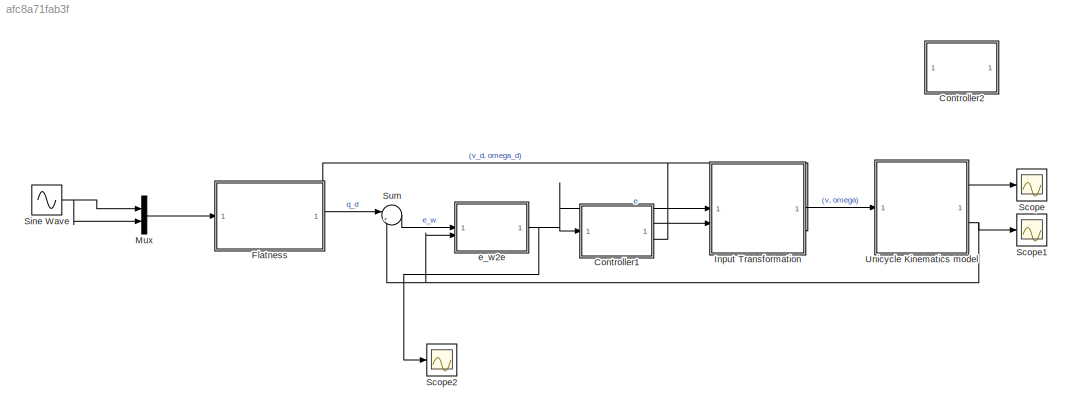
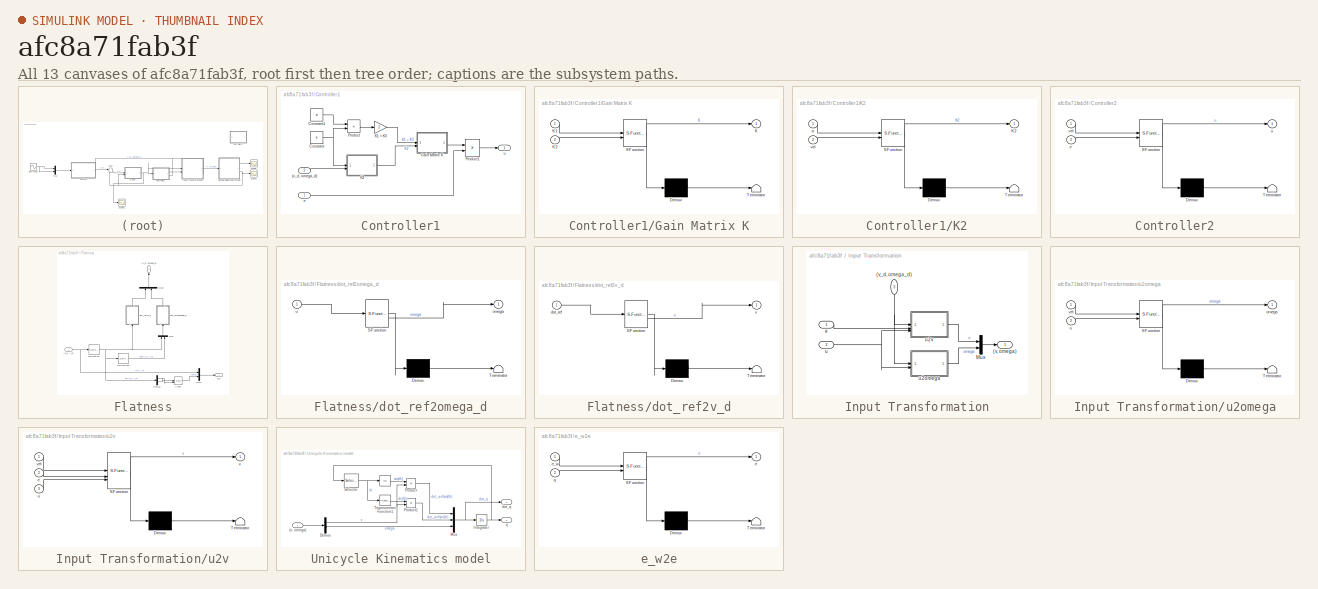
[diagram: thumbnail index - all 13 canvases of the model, root first then tree order]
MODEL slx_afc8a71fab3f
KIND model
CONFIG AbsTol = auto
CONFIG EnableMultiTasking = off
CONFIG FixedStep = auto
CONFIG MaxStep = auto
CONFIG MinStep = auto
CONFIG RelTol = 1e-3
CONFIG SampleTimeConstraint = Unconstrained
CONFIG SolverName = VariableStepAuto
CONFIG StartTime = 0.0
CONFIG StopTime = 10.0
BLOCK [SubSystem] Controller1
  PortSchema = {"entries":[{"content":{"sides":[{"content":{"connectorIds":["In1"]},"type":"ConnectorPlacement.EquallySpacedRectSide","uuid":"663a145a-b0a1-462d-957e-da25aa8d70ec"},{"content":{"connectorIds":["Out1"],"side":"RIGHT"},"type":"ConnectorPlacement.EquallySpacedRectSide","uuid":"3d00da72-66aa-4dae-9c0c-49820669bfbe"},{"content":{"connectorIds":["In2"],"side":"TOP"},"type":"ConnectorPlacement.EquallySp...<+245ch>
BLOCK [Inport] Controller1/(v_d, omega_d)
  Port = 2
BLOCK [Constant] Controller1/Constant
  Value = a
BLOCK [Constant] Controller1/Constant1
  Value = xi
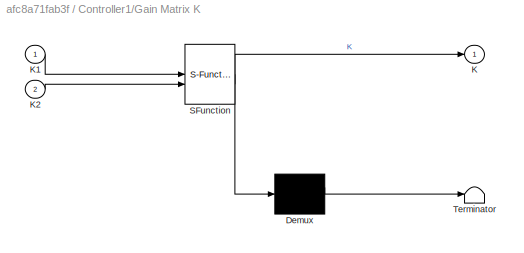
BLOCK [SubSystem] Controller1/Gain Matrix K
  ErrorFcn = Stateflow.Translate.translate
  PermitHierarchicalResolution = ExplicitOnly
  SFBlockType = MATLAB Function
  TreatAsAtomicUnit = on
BLOCK [Demux] Controller1/Gain Matrix K/ Demux 
  Outputs = 1
BLOCK [S-Function] Controller1/Gain Matrix K/ SFunction 
  EnableBusSupport = on
  FunctionName = sf_sfun
  PortCounts = [2 2]
  SFcnIsStateOwnerBlock = off
  SFunctionDeploymentMode = off
  Tag = Stateflow S-Function 4
BLOCK [Terminator] Controller1/Gain Matrix K/ Terminator 
BLOCK [Outport] Controller1/Gain Matrix K/K
BLOCK [Inport] Controller1/Gain Matrix K/K1
BLOCK [Inport] Controller1/Gain Matrix K/K2
  Port = 2
BLOCK [Gain] Controller1/K1 = K3
  Gain = 2
  NameLocation = right
BLOCK [SubSystem] Controller1/K2
  ErrorFcn = Stateflow.Translate.translate
  PermitHierarchicalResolution = ExplicitOnly
  SFBlockType = MATLAB Function
  TreatAsAtomicUnit = on
BLOCK [Demux] Controller1/K2/ Demux 
  Outputs = 1
BLOCK [S-Function] Controller1/K2/ SFunction 
  EnableBusSupport = on
  FunctionName = sf_sfun
  PortCounts = [2 2]
  SFcnIsStateOwnerBlock = off
  SFunctionDeploymentMode = off
  Tag = Stateflow S-Function 5
BLOCK [Terminator] Controller1/K2/ Terminator 
BLOCK [Outport] Controller1/K2/K2
BLOCK [Inport] Controller1/K2/a
BLOCK [Inport] Controller1/K2/vel
  Port = 2
BLOCK [Product] Controller1/Product
BLOCK [Product] Controller1/Product1
  Multiplication = Matrix(*)
BLOCK [Inport] Controller1/e
BLOCK [Outport] Controller1/u
BLOCK [SubSystem] Controller2
  Commented = on
  ErrorFcn = Stateflow.Translate.translate
  PermitHierarchicalResolution = ExplicitOnly
  SFBlockType = MATLAB Function
  TreatAsAtomicUnit = on
BLOCK [Demux] Controller2/ Demux 
  Outputs = 1
BLOCK [S-Function] Controller2/ SFunction 
  EnableBusSupport = on
  FunctionName = sf_sfun
  PortCounts = [2 2]
  SFcnIsStateOwnerBlock = off
  SFunctionDeploymentMode = off
  Tag = Stateflow S-Function 7
BLOCK [Terminator] Controller2/ Terminator 
BLOCK [Inport] Controller2/e
  Port = 2
BLOCK [Outport] Controller2/u
BLOCK [Inport] Controller2/vel
BLOCK [SubSystem] Flatness
  PortSchema = {"entries":[{"content":{"sides":[{"content":{"connectorIds":["In1"]},"type":"ConnectorPlacement.EquallySpacedRectSide","uuid":"bc490c8e-5666-439b-9939-62bd84628b1f"},{"content":{"connectorIds":["Out1"],"side":"RIGHT"},"type":"ConnectorPlacement.EquallySpacedRectSide","uuid":"03a20fcc-2a82-4af2-a970-ff3426fda7d9"},{"content":{"connectorIds":["Out2"],"side":"TOP"},"type":"ConnectorPlacement.EquallyS...<+246ch>
BLOCK [Outport] Flatness/(v_d, omega_d)
  NameLocation = right
  Port = 2
BLOCK [Inport] Flatness/(x_d, y_d)
BLOCK [Trigonometry] Flatness/Atan2
  Operator = atan2
BLOCK [Demux] Flatness/Demux
  Outputs = 2
BLOCK [Derivative] Flatness/Derivative
BLOCK [Derivative] Flatness/Derivative1
BLOCK [Mux] Flatness/Mux
  DisplayOption = bar
  Inputs = 2
  NameLocation = right
BLOCK [Mux] Flatness/Mux1
  DisplayOption = bar
  Inputs = 2
BLOCK [Mux] Flatness/Mux2
  DisplayOption = bar
  Inputs = 2
  NameLocation = right
BLOCK [SubSystem] Flatness/dot_ref2omega_d
  ErrorFcn = Stateflow.Translate.translate
  NameLocation = right
  PermitHierarchicalResolution = ExplicitOnly
  SFBlockType = MATLAB Function
  TreatAsAtomicUnit = on
BLOCK [Demux] Flatness/dot_ref2omega_d/ Demux 
  Outputs = 1
BLOCK [S-Function] Flatness/dot_ref2omega_d/ SFunction 
  EnableBusSupport = on
  FunctionName = sf_sfun
  PortCounts = [1 2]
  SFcnIsStateOwnerBlock = off
  SFunctionDeploymentMode = off
  Tag = Stateflow S-Function 1
BLOCK [Terminator] Flatness/dot_ref2omega_d/ Terminator 
BLOCK [Outport] Flatness/dot_ref2omega_d/omega
BLOCK [Inport] Flatness/dot_ref2omega_d/u
BLOCK [SubSystem] Flatness/dot_ref2v_d
  ErrorFcn = Stateflow.Translate.translate
  NameLocation = right
  PermitHierarchicalResolution = ExplicitOnly
  SFBlockType = MATLAB Function
  TreatAsAtomicUnit = on
BLOCK [Demux] Flatness/dot_ref2v_d/ Demux 
  Outputs = 1
BLOCK [S-Function] Flatness/dot_ref2v_d/ SFunction 
  EnableBusSupport = on
  FunctionName = sf_sfun
  PortCounts = [1 2]
  SFcnIsStateOwnerBlock = off
  SFunctionDeploymentMode = off
  Tag = Stateflow S-Function 2
BLOCK [Terminator] Flatness/dot_ref2v_d/ Terminator 
BLOCK [Inport] Flatness/dot_ref2v_d/dot_ref
BLOCK [Outport] Flatness/dot_ref2v_d/v
BLOCK [Outport] Flatness/q_d
BLOCK [SubSystem] Input Transformation
  PortSchema = {"entries":[{"content":{"sides":[{"content":{"connectorIds":["In1","In2"]},"type":"ConnectorPlacement.EquallySpacedRectSide","uuid":"4cbebdc1-8913-4bb0-9524-d854c819f784"},{"content":{"connectorIds":["Out1"],"side":"RIGHT"},"type":"ConnectorPlacement.EquallySpacedRectSide","uuid":"178a2b4a-0c33-47f3-8be3-bd76dfc47961"},{"content":{"connectorIds":["In3"],"side":"TOP"},"type":"ConnectorPlacement.Equ...<+251ch>
BLOCK [Outport] Input Transformation/(v, omega)
BLOCK [Inport] Input Transformation/(v_d, omega_d)
  NameLocation = left
  Port = 3
BLOCK [Mux] Input Transformation/Mux
  DisplayOption = bar
  Inputs = 2
BLOCK [Inport] Input Transformation/e
BLOCK [Inport] Input Transformation/u
  Port = 2
BLOCK [SubSystem] Input Transformation/u2omega
  ErrorFcn = Stateflow.Translate.translate
  PermitHierarchicalResolution = ExplicitOnly
  SFBlockType = MATLAB Function
  TreatAsAtomicUnit = on
BLOCK [Demux] Input Transformation/u2omega/ Demux 
  Outputs = 1
BLOCK [S-Function] Input Transformation/u2omega/ SFunction 
  EnableBusSupport = on
  FunctionName = sf_sfun
  PortCounts = [2 2]
  SFcnIsStateOwnerBlock = off
  SFunctionDeploymentMode = off
  Tag = Stateflow S-Function 8
BLOCK [Terminator] Input Transformation/u2omega/ Terminator 
BLOCK [Outport] Input Transformation/u2omega/omega
BLOCK [Inport] Input Transformation/u2omega/u
  Port = 2
BLOCK [Inport] Input Transformation/u2omega/vel
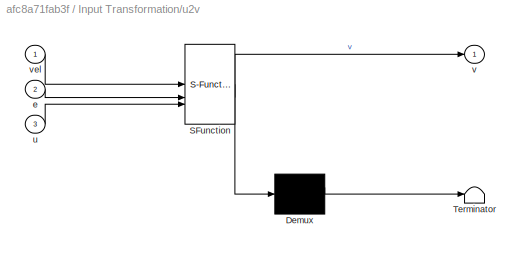
BLOCK [SubSystem] Input Transformation/u2v
  ErrorFcn = Stateflow.Translate.translate
  PermitHierarchicalResolution = ExplicitOnly
  SFBlockType = MATLAB Function
  TreatAsAtomicUnit = on
BLOCK [Demux] Input Transformation/u2v/ Demux 
  Outputs = 1
BLOCK [S-Function] Input Transformation/u2v/ SFunction 
  EnableBusSupport = on
  FunctionName = sf_sfun
  PortCounts = [3 2]
  SFcnIsStateOwnerBlock = off
  SFunctionDeploymentMode = off
  Tag = Stateflow S-Function 9
BLOCK [Terminator] Input Transformation/u2v/ Terminator 
BLOCK [Inport] Input Transformation/u2v/e
  Port = 2
BLOCK [Inport] Input Transformation/u2v/u
  Port = 3
BLOCK [Outport] Input Transformation/u2v/v
BLOCK [Inport] Input Transformation/u2v/vel
BLOCK [Mux] Mux
  DisplayOption = bar
  Inputs = 2
BLOCK [Scope] Scope
  Floating = off
  NumInputPorts = 1
  ScopeSpecificationString = Simulink.scopes.TimeScopeBlockCfg('CurrentConfiguration', extmgr.ConfigurationSet(extmgr.Configuration('Core','General UI',true),extmgr.Configuration('Core','Source UI',true),extmgr.Configuration('Sources','WiredSimulink',true),extmgr.Configuration('Visuals','Time Domain',true),extmgr.Configuration('Tools','Plot Navigation',true),extmgr.Configuration('Tools','Measurements',true)),'Version','2024b'...<+1ch>
BLOCK [Scope] Scope1
  Floating = off
  NumInputPorts = 1
  ScopeSpecificationString = Simulink.scopes.TimeScopeBlockCfg('CurrentConfiguration', extmgr.ConfigurationSet(extmgr.Configuration('Core','General UI',true),extmgr.Configuration('Core','Source UI',true),extmgr.Configuration('Sources','WiredSimulink',true,'DataLoggingVariableName','ScopeData1'),extmgr.Configuration('Visuals','Time Domain',true),extmgr.Configuration('Tools','Plot Navigation',true),extmgr.Configuration('Tools',...<+40ch>
BLOCK [Scope] Scope2
  Floating = off
  NumInputPorts = 1
  ScopeSpecificationString = Simulink.scopes.TimeScopeBlockCfg('CurrentConfiguration', extmgr.ConfigurationSet(extmgr.Configuration('Core','General UI',true),extmgr.Configuration('Core','Source UI',true),extmgr.Configuration('Sources','WiredSimulink',true,'DataLoggingVariableName','ScopeData1'),extmgr.Configuration('Visuals','Time Domain',true,'SerializedDisplays',{struct('MinYLimReal','-2.77567','MaxYLimReal','1.41904','YLab...<+1590ch>
BLOCK [Sin] Sine Wave
  SampleTime = 0
BLOCK [Sum] Sum
  Inputs = |+-
BLOCK [SubSystem] Unicycle Kinematics model
BLOCK [Trigonometry] Unicycle Kinematics model/ 
  Operator = cos
BLOCK [Inport] Unicycle Kinematics model/(v, omega)
BLOCK [Demux] Unicycle Kinematics model/Demux
  Outputs = 2
BLOCK [Integrator] Unicycle Kinematics model/Integrator
  InitialCondition = 1e-10
BLOCK [Mux] Unicycle Kinematics model/Mux
  DisplayOption = bar
  Inputs = 3
BLOCK [Product] Unicycle Kinematics model/Product
BLOCK [Product] Unicycle Kinematics model/Product1
BLOCK [Selector] Unicycle Kinematics model/Selector
  IndexOptions = Index vector (dialog)
  Indices = [3]
  InputPortWidth = 3
  OutputSizes = 1
BLOCK [Trigonometry] Unicycle Kinematics model/Trigonometric Function1
BLOCK [Outport] Unicycle Kinematics model/dot_q
BLOCK [Outport] Unicycle Kinematics model/q
  Port = 2
BLOCK [SubSystem] e_w2e
  ErrorFcn = Stateflow.Translate.translate
  PermitHierarchicalResolution = ExplicitOnly
  SFBlockType = MATLAB Function
  TreatAsAtomicUnit = on
BLOCK [Demux] e_w2e/ Demux 
  Outputs = 1
BLOCK [S-Function] e_w2e/ SFunction 
  EnableBusSupport = on
  FunctionName = sf_sfun
  PortCounts = [2 2]
  SFcnIsStateOwnerBlock = off
  SFunctionDeploymentMode = off
  Tag = Stateflow S-Function 3
BLOCK [Terminator] e_w2e/ Terminator 
BLOCK [Outport] e_w2e/e
BLOCK [Inport] e_w2e/e_w
BLOCK [Inport] e_w2e/q
  Port = 2
LINE Controller1/(v_d, omega_d):1 -> Controller1/K2:2
LINE Controller1/Constant1:1 -> Controller1/Product:1
NET Controller1/Constant:1 -> Controller1/K2:1, Controller1/Product:2
LINE Controller1/Gain Matrix K:1 -> Controller1/Product1:1
LINE Controller1/K1 = K3:1 -> Controller1/Gain Matrix K:1
LINE Controller1/K2:1 -> Controller1/Gain Matrix K:2
LINE Controller1/Product1:1 -> Controller1/u:1
LINE Controller1/Product:1 -> Controller1/K1 = K3:1
LINE Controller1/e:1 -> Controller1/Product1:2
LINE Controller1:1 -> Input Transformation:2
NET Flatness/(x_d, y_d):1 -> Flatness/Derivative:1, Flatness/Mux1:1
LINE Flatness/Atan2:1 -> Flatness/Mux1:2
LINE Flatness/Demux:1 -> Flatness/Atan2:2
LINE Flatness/Demux:2 -> Flatness/Atan2:1
LINE Flatness/Derivative1:1 -> Flatness/Mux:2
NET Flatness/Derivative:1 -> Flatness/Demux:1, Flatness/Derivative1:1, Flatness/Mux:1, Flatness/dot_ref2v_d:1
LINE Flatness/Mux1:1 -> Flatness/q_d:1
LINE Flatness/Mux2:1 -> Flatness/(v_d, omega_d):1
LINE Flatness/Mux:1 -> Flatness/dot_ref2omega_d:1
LINE Flatness/dot_ref2omega_d:1 -> Flatness/Mux2:2
LINE Flatness/dot_ref2v_d:1 -> Flatness/Mux2:1
LINE Flatness:1 -> Sum:1
NET Flatness:2 -> Controller1:2, Input Transformation:3
NET Input Transformation/(v_d, omega_d):1 -> Input Transformation/u2omega:1, Input Transformation/u2v:1
LINE Input Transformation/Mux:1 -> Input Transformation/(v, omega):1
LINE Input Transformation/e:1 -> Input Transformation/u2v:2
LINE Input Transformation/u2omega:1 -> Input Transformation/Mux:2
LINE Input Transformation/u2v:1 -> Input Transformation/Mux:1
NET Input Transformation/u:1 -> Input Transformation/u2omega:2, Input Transformation/u2v:3
LINE Input Transformation:1 -> Unicycle Kinematics model:1
LINE Mux:1 -> Flatness:1
NET Sine Wave:1 -> Mux:1, Mux:2
LINE Sum:1 -> e_w2e:1
LINE Unicycle Kinematics model/ :1 -> Unicycle Kinematics model/Product:1
LINE Unicycle Kinematics model/(v, omega):1 -> Unicycle Kinematics model/Demux:1
NET Unicycle Kinematics model/Demux:1 -> Unicycle Kinematics model/Product1:2, Unicycle Kinematics model/Product:2
LINE Unicycle Kinematics model/Demux:2 -> Unicycle Kinematics model/Mux:3
NET Unicycle Kinematics model/Integrator:1 -> Unicycle Kinematics model/Selector:1, Unicycle Kinematics model/q:1
NET Unicycle Kinematics model/Mux:1 -> Unicycle Kinematics model/Integrator:1, Unicycle Kinematics model/dot_q:1
LINE Unicycle Kinematics model/Product1:1 -> Unicycle Kinematics model/Mux:2
LINE Unicycle Kinematics model/Product:1 -> Unicycle Kinematics model/Mux:1
NET Unicycle Kinematics model/Selector:1 -> Unicycle Kinematics model/ :1, Unicycle Kinematics model/Trigonometric Function1:1
LINE Unicycle Kinematics model/Trigonometric Function1:1 -> Unicycle Kinematics model/Product1:1
LINE Unicycle Kinematics model:1 -> Scope:1
NET Unicycle Kinematics model:2 -> Scope1:1, Sum:2, e_w2e:2
NET e_w2e:1 -> Controller1:1, Input Transformation:1, Scope2:1
note: NET lines group one-source signal fan-out (src -> all destinations, sorted); 1:1 wires keep LINE
CHART Flatness/dot_ref2v_d states=1 transitions=1
  STATE_LABEL 'eML_blk_kernel()'
  STATE_LABEL 'SCRIPT:\nfunction v = fcn(dot_ref)\n    dot_x = dot_ref(1);\n    dot_y = dot_ref(2);\n\n    v = sqrt(dot_x^2 + dot_y^2);\n'
CHART e_w2e states=1 transitions=1
  STATE_LABEL 'eML_blk_kernel()'
  STATE_LABEL 'SCRIPT:\nfunction e = fcn(e_w, q)\n    theta = q(3);\n\n    R = [cos(theta) sin(theta) 0; \n        -sin(theta) cos(theta) 0;\n             0          0      1];\n\n    e = R*e_w; \n'
CHART Controller1/Gain Matrix K states=1 transitions=1
  STATE_LABEL 'eML_blk_kernel()'
  STATE_LABEL 'SCRIPT:\nfunction K = fcn(K1, K2)\nK3 = K1;\n\nK = [-K1  0   0;\n      0  -K2 -K3];'
CHART Controller1/K2 states=1 transitions=1
  STATE_LABEL 'eML_blk_kernel()'
  STATE_LABEL 'SCRIPT:\nfunction K2 = fcn(a, vel)\nv_d = vel(1);\nomega_d = vel(2);\n\nK2 = (a^2-omega_d^2)/(v_d);'
CHART Controller2 states=1 transitions=1
  STATE_LABEL 'eML_blk_kernel()'
  STATE_LABEL 'SCRIPT:\nfunction u = fcn(vel, e)\n\nd = 1/sqrt(2);\na = 10;\nv_d = vel(1);\nomega_d = vel(2);\n\nk1 = 2*d*a;\nif abs(v_d) < 1e-4\n    if v_d >= 0\n        v_d = 1e-4;\n    else\n        v_d = -1e-4;\n        \n    end\nend\nk2 = (a^2 - omega_d^2)/v_d;\nk3 = k1;\nk = [-k1,0,0; 0, -k2, -k3];\n\nu = k*e;'
CHART Input Transformation/u2omega states=1 transitions=1
  STATE_LABEL 'eML_blk_kernel()'
  STATE_LABEL 'SCRIPT:\nfunction omega = fcn(vel,u)\n    omega_d = vel(2);\n\n    omega = omega_d-u(2);\n\n'
CHART Input Transformation/u2v states=1 transitions=1
  STATE_LABEL 'eML_blk_kernel()'
  STATE_LABEL 'SCRIPT:\nfunction v = fcn(vel, e, u)\n v_d = vel(1);\n\n v = v_d*cos(e(3))-u(1);\n'
CHART Flatness/dot_ref2omega_d states=1 transitions=1
  STATE_LABEL 'eML_blk_kernel()'
  STATE_LABEL 'SCRIPT:\nfunction omega = fcn(u)\n    dot_x = u(1);\n    dot_y = u(2);\n    ddot_x = u(3);\n    ddot_y = u(4);\n\n    omega = (dot_x*ddot_y - dot_y*ddot_x) / (dot_x^2 + dot_y^2);'
CHART  states=0 transitions=0
CHART  states=0 transitions=0
CHART  states=0 transitions=0
CHART  states=0 transitions=0
CHART  states=0 transitions=0
CHART  states=0 transitions=0
CHART  states=0 transitions=0
CHART  states=0 transitions=0
